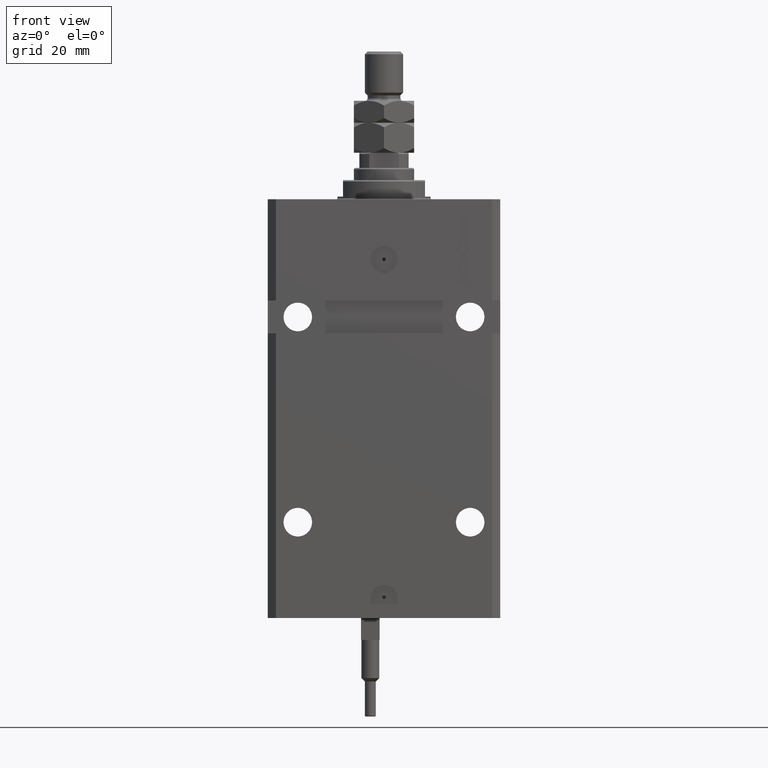
[diagram: clean part render]
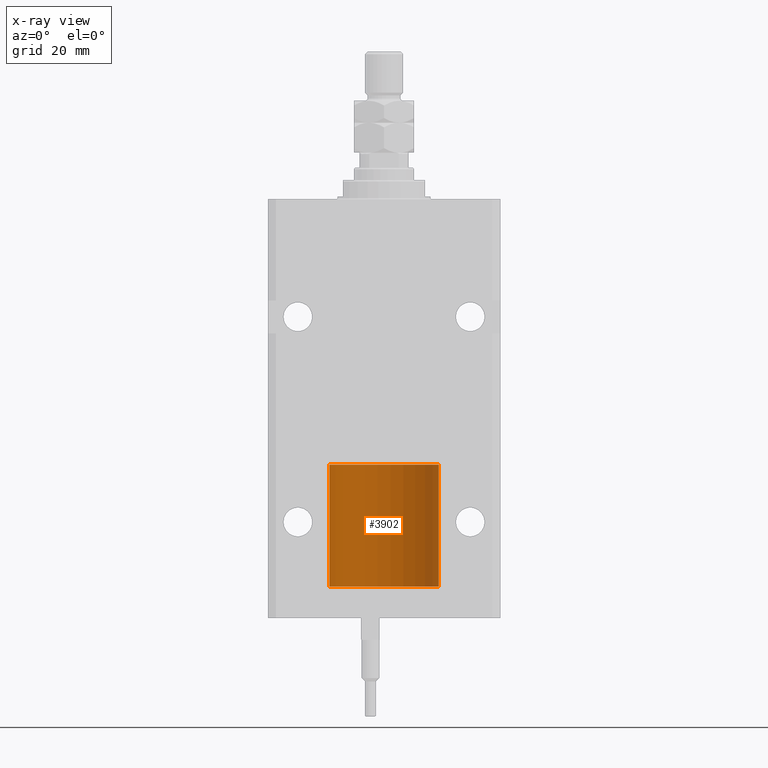
[diagram: x-ray — body ghosted, one internal face saturated and labeled with its STEP entity id]
A machine part, front view, then the same camera in x-ray: the body is ghosted and one INTERNAL B-rep face — a face not visible from any outside direction — is saturated and labeled: STEP entity #3902.
In plain terms, the highlighted cylindrical surface (partial cylindrical patch) has radius 20 mm, axis along (-0, -0, -1).
Its self-contained STEP definition (entity closure, byte-faithful):
#681 = DIRECTION ( 'NONE',  ( 0.000000000000000000, 0.000000000000000000, 1.000000000000000000 ) ) ;
#2159 = EDGE_CURVE ( 'NONE', #48476, #41558, #21013, .T. ) ;
#2341 = DIRECTION ( 'NONE',  ( 0.000000000000000000, 0.000000000000000000, 1.000000000000000000 ) ) ;
#2585 = CARTESIAN_POINT ( 'NONE',  ( 0.000000000000000000, 0.000000000000000000, 44.60000000000000142 ) ) ;
#3348 = DIRECTION ( 'NONE',  ( 1.000000000000000000, 0.000000000000000000, 0.000000000000000000 ) ) ;
#3902 = ADVANCED_FACE ( 'NONE', ( #50781 ), #28082, .T. ) ;
#5839 = CARTESIAN_POINT ( 'NONE',  ( -20.00000000000000000, 0.000000000000000000, 44.60000000000000142 ) ) ;
#7810 = CARTESIAN_POINT ( 'NONE',  ( 20.00000000000000000, 2.449293598294706513E-15, 44.60000000000000142 ) ) ;
#7965 = EDGE_CURVE ( 'NONE', #45361, #48476, #46724, .T. ) ;
#9442 = ORIENTED_EDGE ( 'NONE', *, *, #7965, .T. ) ;
#9549 = AXIS2_PLACEMENT_3D ( 'NONE', #38917, #39174, #31702 ) ;
#12389 = EDGE_CURVE ( 'NONE', #45361, #44860, #26246, .T. ) ;
#16118 = ORIENTED_EDGE ( 'NONE', *, *, #12389, .F. ) ;
#17473 = EDGE_LOOP ( 'NONE', ( #16118, #9442, #23975, #29852 ) ) ;
#17681 = CARTESIAN_POINT ( 'NONE',  ( -20.00000000000000000, 0.000000000000000000, 0.000000000000000000 ) ) ;
#20148 = DIRECTION ( 'NONE',  ( -0.000000000000000000, -0.000000000000000000, -1.000000000000000000 ) ) ;
#21013 = CIRCLE ( 'NONE', #48211, 20.00000000000000000 ) ;
#23975 = ORIENTED_EDGE ( 'NONE', *, *, #2159, .T. ) ;
#26246 = CIRCLE ( 'NONE', #47665, 20.00000000000000000 ) ;
#26950 = LINE ( 'NONE', #30569, #44310 ) ;
#28082 = CYLINDRICAL_SURFACE ( 'NONE', #9549, 20.00000000000000000 ) ;
#29852 = ORIENTED_EDGE ( 'NONE', *, *, #38781, .F. ) ;
#30569 = CARTESIAN_POINT ( 'NONE',  ( -20.00000000000000000, 0.000000000000000000, 44.60000000000000142 ) ) ;
#31495 = CARTESIAN_POINT ( 'NONE',  ( 20.00000000000000000, 2.449293598294706513E-15, 44.60000000000000142 ) ) ;
#31702 = DIRECTION ( 'NONE',  ( -1.000000000000000000, 0.000000000000000000, 0.000000000000000000 ) ) ;
#32165 = DIRECTION ( 'NONE',  ( 1.000000000000000000, 0.000000000000000000, 0.000000000000000000 ) ) ;
#33498 = VECTOR ( 'NONE', #20148, 1000.000000000000000 ) ;
#34190 = DIRECTION ( 'NONE',  ( -0.000000000000000000, -0.000000000000000000, -1.000000000000000000 ) ) ;
#34767 = CARTESIAN_POINT ( 'NONE',  ( 0.000000000000000000, 0.000000000000000000, 0.000000000000000000 ) ) ;
#38781 = EDGE_CURVE ( 'NONE', #44860, #41558, #26950, .T. ) ;
#38917 = CARTESIAN_POINT ( 'NONE',  ( 0.000000000000000000, 0.000000000000000000, 44.60000000000000142 ) ) ;
#39174 = DIRECTION ( 'NONE',  ( -0.000000000000000000, -0.000000000000000000, -1.000000000000000000 ) ) ;
#41558 = VERTEX_POINT ( 'NONE', #17681 ) ;
#44310 = VECTOR ( 'NONE', #34190, 1000.000000000000000 ) ;
#44860 = VERTEX_POINT ( 'NONE', #5839 ) ;
#45361 = VERTEX_POINT ( 'NONE', #7810 ) ;
#46724 = LINE ( 'NONE', #31495, #33498 ) ;
#47462 = CARTESIAN_POINT ( 'NONE',  ( 20.00000000000000000, 2.449293598294706513E-15, 0.000000000000000000 ) ) ;
#47665 = AXIS2_PLACEMENT_3D ( 'NONE', #2585, #2341, #3348 ) ;
#48211 = AXIS2_PLACEMENT_3D ( 'NONE', #34767, #681, #32165 ) ;
#48476 = VERTEX_POINT ( 'NONE', #47462 ) ;
#50781 = FACE_OUTER_BOUND ( 'NONE', #17473, .T. ) ;